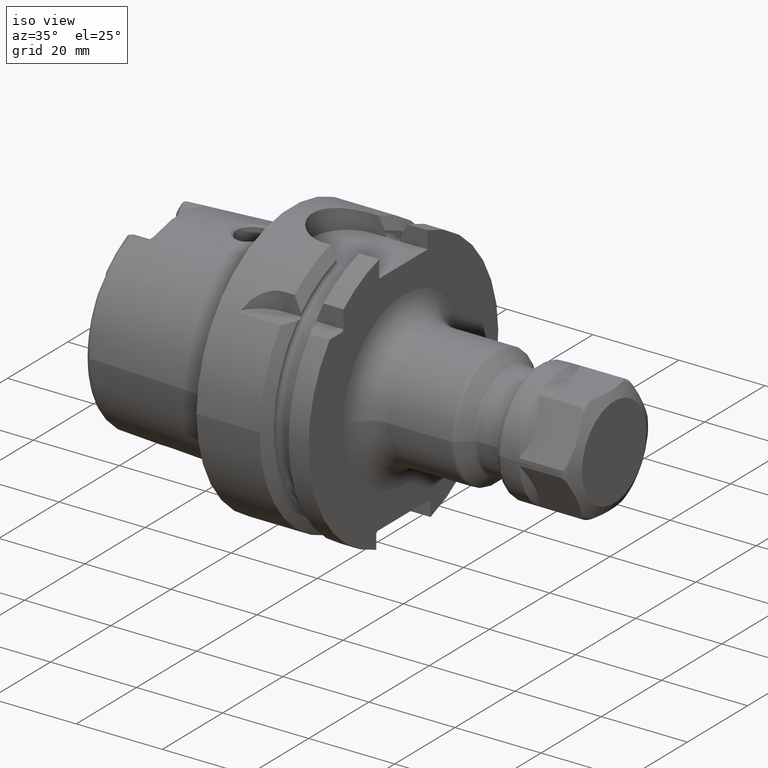
[diagram: clean part render]
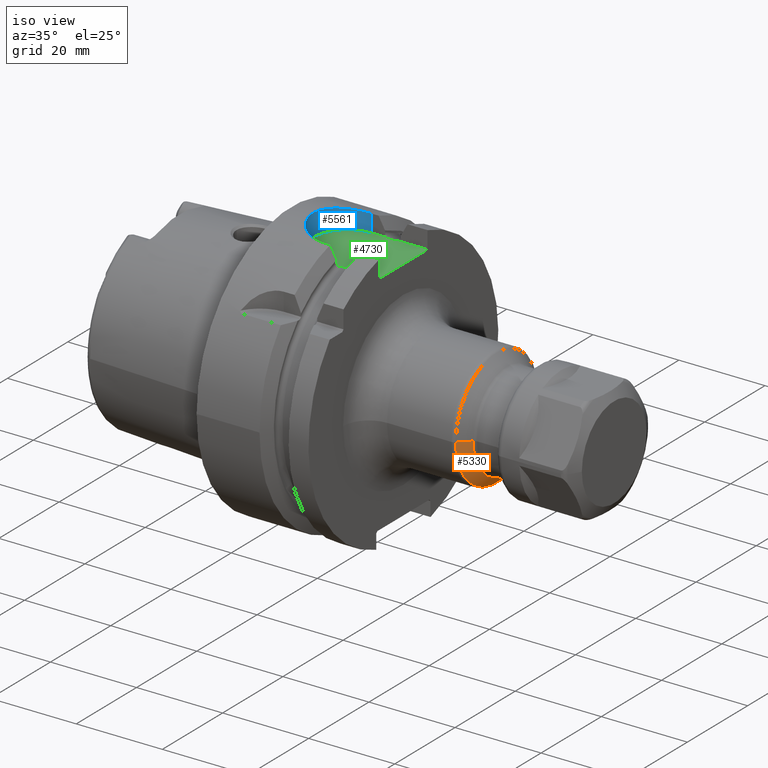
[diagram: same view with three faces highlighted in distinct colors, each labeled with its STEP entity id]
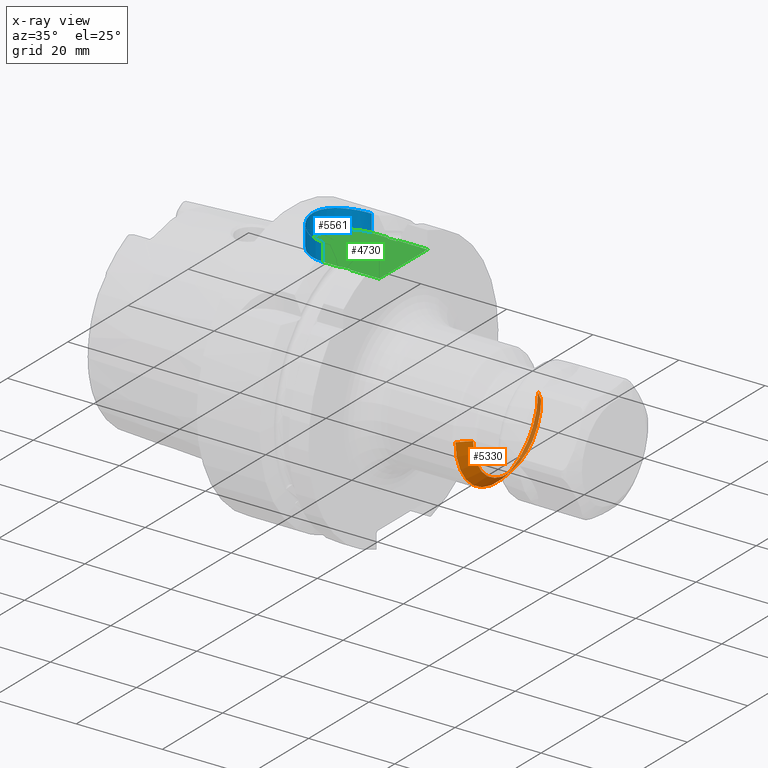
[diagram: x-ray of the same camera — body ghosted, the three highlighted faces saturated]
A machine part, iso view with three faces highlighted in distinct colors.
The next image is the same camera in x-ray (body ghosted, the three faces saturated) — at least one of them is partly hidden behind the body in this view.
Their STEP definitions:

[orange] entity #5330 — the highlighted conical surface has half-angle 45 deg.
#2004=CARTESIAN_POINT('',(4.769289321881E1,0.E0,0.E0));
#2005=DIRECTION('',(-1.E0,0.E0,0.E0));
#2006=DIRECTION('',(0.E0,1.E0,0.E0));
#2007=AXIS2_PLACEMENT_3D('',#2004,#2005,#2006);
#2009=DIRECTION('',(-7.071067811865E-1,-7.071067811865E-1,-1.066852687737E-12));
#2010=VECTOR('',#2009,3.414213562373E0);
#2011=CARTESIAN_POINT('',(5.010710678119E1,-1.129289321881E1,
2.790650948040E-13));
#2012=LINE('',#2011,#2010);
#2013=CARTESIAN_POINT('',(5.010710678119E1,0.E0,0.E0));
#2014=DIRECTION('',(1.E0,0.E0,0.E0));
#2015=DIRECTION('',(0.E0,-1.E0,0.E0));
#2016=AXIS2_PLACEMENT_3D('',#2013,#2014,#2015);
#2018=DIRECTION('',(-7.071067811865E-1,7.071067811866E-1,1.066632331929E-12));
#2019=VECTOR('',#2018,3.414213562373E0);
#2020=CARTESIAN_POINT('',(5.010710678119E1,1.129289321881E1,
-2.794247177302E-13));
#2021=LINE('',#2020,#2019);
#3124=CARTESIAN_POINT('',(5.010710678119E1,-1.129289321881E1,0.E0));
#3125=CARTESIAN_POINT('',(5.010710678119E1,1.129289321881E1,0.E0));
#3126=VERTEX_POINT('',#3124);
#3127=VERTEX_POINT('',#3125);
#3136=CARTESIAN_POINT('',(4.769289321881E1,1.370710678119E1,0.E0));
#3137=CARTESIAN_POINT('',(4.769289321881E1,-1.370710678119E1,0.E0));
#3138=VERTEX_POINT('',#3136);
#3139=VERTEX_POINT('',#3137);
#5316=CARTESIAN_POINT('',(4.89E1,0.E0,0.E0));
#5317=DIRECTION('',(-1.E0,0.E0,0.E0));
#5318=DIRECTION('',(0.E0,1.E0,0.E0));
#5319=AXIS2_PLACEMENT_3D('',#5316,#5317,#5318);
#5320=CONICAL_SURFACE('',#5319,1.25E1,4.5E1);
#5321=ORIENTED_EDGE('',*,*,#5298,.T.);
#5323=ORIENTED_EDGE('',*,*,#5322,.F.);
#5325=ORIENTED_EDGE('',*,*,#5324,.T.);
#5327=ORIENTED_EDGE('',*,*,#5326,.T.);
#5328=EDGE_LOOP('',(#5321,#5323,#5325,#5327));
#5329=FACE_OUTER_BOUND('',#5328,.F.);
#5330=ADVANCED_FACE('',(#5329),#5320,.T.);
#2008=CIRCLE('',#2007,1.370710678119E1);
#2017=CIRCLE('',#2016,1.129289321881E1);
#5298=EDGE_CURVE('',#3138,#3139,#2008,.T.);
#5322=EDGE_CURVE('',#3126,#3139,#2012,.T.);
#5324=EDGE_CURVE('',#3126,#3127,#2017,.T.);
#5326=EDGE_CURVE('',#3127,#3138,#2021,.T.);

[blue] entity #5561 — the highlighted cylindrical surface (partial cylindrical patch) has radius 8.0175 mm, axis along (0, 0, 1).
#1150=CARTESIAN_POINT('',(1.29675E1,-8.0175E0,3.046259499370E1));
#1151=CARTESIAN_POINT('',(1.262029466193E1,-8.0175E0,3.046259499370E1));
#1152=CARTESIAN_POINT('',(1.193292082029E1,-7.972856309682E0,3.047439785027E1));
#1153=CARTESIAN_POINT('',(1.091425902188E1,-7.773176787902E0,3.052624418591E1));
#1154=CARTESIAN_POINT('',(9.934126849983E0,-7.445404290975E0,3.060831570964E1));
#1155=CARTESIAN_POINT('',(9.004286205686E0,-6.994846174415E0,3.071501370342E1));
#1156=CARTESIAN_POINT('',(8.138619971222E0,-6.428343040649E0,3.083929437245E1));
#1157=CARTESIAN_POINT('',(7.341033244269E0,-5.744094981007E0,3.097488281900E1));
#1158=CARTESIAN_POINT('',(6.636610015904E0,-4.956823973346E0,3.111134005505E1));
#1159=CARTESIAN_POINT('',(6.043298615168E0,-4.087231355503E0,3.123817795333E1));
#1160=CARTESIAN_POINT('',(5.564354260648E0,-3.139626798488E0,3.134839057540E1));
#1161=CARTESIAN_POINT('',(5.208675508384E0,-2.115659667041E0,3.143476377212E1));
#1162=CARTESIAN_POINT('',(4.995564432998E0,-1.053473182399E0,3.148835416009E1));
#1163=CARTESIAN_POINT('',(4.927168873806E0,9.826508337445E-4,3.150583538732E1));
#1164=CARTESIAN_POINT('',(4.995760366771E0,1.054869977933E0,3.148830421554E1));
#1165=CARTESIAN_POINT('',(5.209100296272E0,2.117206961075E0,3.143465845843E1));
#1166=CARTESIAN_POINT('',(5.564768023101E0,3.140504656583E0,3.134829355759E1));
#1167=CARTESIAN_POINT('',(6.043465163200E0,4.087475455639E0,3.123814225608E1));
#1168=CARTESIAN_POINT('',(6.636650004810E0,4.956867733051E0,3.111133228169E1));
#1169=CARTESIAN_POINT('',(7.340978157719E0,5.744022439956E0,3.097489453754E1));
#1170=CARTESIAN_POINT('',(8.138191392118E0,6.427992830706E0,3.083936557780E1));
#1171=CARTESIAN_POINT('',(9.003473595842E0,6.994378480458E0,3.071512050332E1));
#1172=CARTESIAN_POINT('',(9.933336680083E0,7.445092599368E0,3.060839241432E1));
#1173=CARTESIAN_POINT('',(1.091365443769E1,7.773025904739E0,3.052628299010E1));
#1174=CARTESIAN_POINT('',(1.193250504209E1,7.972814414214E0,3.047440893684E1));
#1175=CARTESIAN_POINT('',(1.262014082393E1,8.0175E0,3.046259499370E1));
#1176=CARTESIAN_POINT('',(1.29675E1,8.0175E0,3.046259499370E1));
#1512=CARTESIAN_POINT('',(1.29675E1,0.E0,2.64E1));
#1513=DIRECTION('',(0.E0,0.E0,1.E0));
#1514=DIRECTION('',(0.E0,1.E0,0.E0));
#1515=AXIS2_PLACEMENT_3D('',#1512,#1513,#1514);
#1521=DIRECTION('',(0.E0,0.E0,1.E0));
#1522=VECTOR('',#1521,4.062594993697E0);
#1523=CARTESIAN_POINT('',(1.29675E1,-8.0175E0,2.64E1));
#1524=LINE('',#1523,#1522);
#2154=DIRECTION('',(0.E0,0.E0,1.E0));
#2155=VECTOR('',#2154,4.062594993697E0);
#2156=CARTESIAN_POINT('',(1.29675E1,8.0175E0,2.64E1));
#2157=LINE('',#2156,#2155);
#2955=CARTESIAN_POINT('',(1.29675E1,8.0175E0,2.64E1));
#2956=CARTESIAN_POINT('',(1.29675E1,-8.0175E0,2.64E1));
#2957=VERTEX_POINT('',#2955);
#2958=VERTEX_POINT('',#2956);
#2961=CARTESIAN_POINT('',(1.29675E1,8.0175E0,3.046259499370E1));
#2962=VERTEX_POINT('',#2961);
#2963=CARTESIAN_POINT('',(1.29675E1,-8.0175E0,3.046259499370E1));
#2964=VERTEX_POINT('',#2963);
#5550=CARTESIAN_POINT('',(1.29675E1,0.E0,2.64E1));
#5551=DIRECTION('',(0.E0,0.E0,1.E0));
#5552=DIRECTION('',(1.E0,0.E0,0.E0));
#5553=AXIS2_PLACEMENT_3D('',#5550,#5551,#5552);
#5554=CYLINDRICAL_SURFACE('',#5553,8.0175E0);
#5555=ORIENTED_EDGE('',*,*,#4832,.F.);
#5556=ORIENTED_EDGE('',*,*,#4712,.T.);
#5557=ORIENTED_EDGE('',*,*,#4743,.T.);
#5558=ORIENTED_EDGE('',*,*,#4444,.T.);
#5559=EDGE_LOOP('',(#5555,#5556,#5557,#5558));
#5560=FACE_OUTER_BOUND('',#5559,.F.);
#5561=ADVANCED_FACE('',(#5560),#5554,.F.);
#1177=B_SPLINE_CURVE_WITH_KNOTS('',3,(#1150,#1151,#1152,#1153,#1154,#1155,#1156,
#1157,#1158,#1159,#1160,#1161,#1162,#1163,#1164,#1165,#1166,#1167,#1168,#1169,
#1170,#1171,#1172,#1173,#1174,#1175,#1176),.UNSPECIFIED.,.F.,.F.,(4,1,1,1,1,1,1,
1,1,1,1,1,1,1,1,1,1,1,1,1,1,1,1,1,4),(0.E0,4.166666666667E-2,8.333333333333E-2,
1.25E-1,1.666666666667E-1,2.083333333333E-1,2.5E-1,2.916666666667E-1,
3.333333333333E-1,3.75E-1,4.166666666667E-1,4.583333333333E-1,5.E-1,
5.416666666667E-1,5.833333333333E-1,6.25E-1,6.666666666667E-1,7.083333333333E-1,
7.5E-1,7.916666666667E-1,8.333333333333E-1,8.75E-1,9.166666666667E-1,
9.583333333333E-1,1.E0),.UNSPECIFIED.);
#1516=CIRCLE('',#1515,8.0175E0);
#4444=EDGE_CURVE('',#2964,#2962,#1177,.T.);
#4712=EDGE_CURVE('',#2957,#2958,#1516,.T.);
#4743=EDGE_CURVE('',#2958,#2964,#1524,.T.);
#4832=EDGE_CURVE('',#2957,#2962,#2157,.T.);

[green] entity #4730 — the highlighted planar face has unit normal (0, 0, 1).
#1235=CARTESIAN_POINT('',(1.670911310946E1,8.0175E0,2.64E1));
#1236=CARTESIAN_POINT('',(1.673352951994E1,7.979074793464E0,2.64E1));
#1237=CARTESIAN_POINT('',(1.678346969240E1,7.908219856299E0,2.64E1));
#1238=CARTESIAN_POINT('',(1.686140323483E1,7.821166046425E0,2.64E1));
#1239=CARTESIAN_POINT('',(1.694700550698E1,7.751989508750E0,2.64E1));
#1240=CARTESIAN_POINT('',(1.703710106542E1,7.709022207033E0,2.64E1));
#1241=CARTESIAN_POINT('',(1.709569678300E1,7.7E0,2.64E1));
#1242=CARTESIAN_POINT('',(1.7125E1,7.7E0,2.64E1));
#1286=CARTESIAN_POINT('',(1.7125E1,-7.7E0,2.64E1));
#1287=CARTESIAN_POINT('',(1.709801542874E1,-7.7E0,2.64E1));
#1288=CARTESIAN_POINT('',(1.704428225575E1,-7.707480820281E0,2.64E1));
#1289=CARTESIAN_POINT('',(1.696015728326E1,-7.744711750978E0,2.64E1));
#1290=CARTESIAN_POINT('',(1.688520085667E1,-7.800550899081E0,2.64E1));
#1291=CARTESIAN_POINT('',(1.681986238020E1,-7.866117342831E0,2.64E1));
#1292=CARTESIAN_POINT('',(1.676061128616E1,-7.939936204551E0,2.64E1));
#1293=CARTESIAN_POINT('',(1.672578491309E1,-7.991262830607E0,2.64E1));
#1294=CARTESIAN_POINT('',(1.670911310946E1,-8.0175E0,2.64E1));
#1381=CARTESIAN_POINT('',(1.8875E1,7.7E0,2.64E1));
#1382=CARTESIAN_POINT('',(1.890430468861E1,7.7E0,2.64E1));
#1383=CARTESIAN_POINT('',(1.896290280766E1,7.708993215977E0,2.64E1));
#1384=CARTESIAN_POINT('',(1.905331742183E1,7.752198019553E0,2.64E1));
#1385=CARTESIAN_POINT('',(1.913860453300E1,7.821194226188E0,2.64E1));
#1386=CARTESIAN_POINT('',(1.921661446474E1,7.908317855978E0,2.64E1));
#1387=CARTESIAN_POINT('',(1.926649394598E1,7.979111722839E0,2.64E1));
#1388=CARTESIAN_POINT('',(1.929088689054E1,8.0175E0,2.64E1));
#1436=CARTESIAN_POINT('',(1.929088689054E1,-8.0175E0,2.64E1));
#1437=CARTESIAN_POINT('',(1.927417922618E1,-7.991206394948E0,2.64E1));
#1438=CARTESIAN_POINT('',(1.923922993687E1,-7.939709103662E0,2.64E1));
#1439=CARTESIAN_POINT('',(1.917963781936E1,-7.865495822527E0,2.64E1));
#1440=CARTESIAN_POINT('',(1.911354741171E1,-7.799456458601E0,2.64E1));
#1441=CARTESIAN_POINT('',(1.903907332419E1,-7.744292367168E0,2.64E1));
#1442=CARTESIAN_POINT('',(1.895500739860E1,-7.707298016794E0,2.64E1));
#1443=CARTESIAN_POINT('',(1.890171865616E1,-7.7E0,2.64E1));
#1444=CARTESIAN_POINT('',(1.8875E1,-7.7E0,2.64E1));
#1491=DIRECTION('',(1.E0,0.E0,0.E0));
#1492=VECTOR('',#1491,1.75E0);
#1493=CARTESIAN_POINT('',(1.7125E1,-7.7E0,2.64E1));
#1494=LINE('',#1493,#1492);
#1499=DIRECTION('',(1.E0,0.E0,0.E0));
#1500=VECTOR('',#1499,1.75E0);
#1501=CARTESIAN_POINT('',(1.7125E1,7.7E0,2.64E1));
#1502=LINE('',#1501,#1500);
#1508=DIRECTION('',(1.E0,0.E0,0.E0));
#1509=VECTOR('',#1508,3.741613109456E0);
#1510=CARTESIAN_POINT('',(1.29675E1,-8.0175E0,2.64E1));
#1511=LINE('',#1510,#1509);
#1512=CARTESIAN_POINT('',(1.29675E1,0.E0,2.64E1));
#1513=DIRECTION('',(0.E0,0.E0,1.E0));
#1514=DIRECTION('',(0.E0,1.E0,0.E0));
#1515=AXIS2_PLACEMENT_3D('',#1512,#1513,#1514);
#1517=DIRECTION('',(-1.E0,0.E0,0.E0));
#1518=VECTOR('',#1517,3.741613109456E0);
#1519=CARTESIAN_POINT('',(1.670911310946E1,8.0175E0,2.64E1));
#1520=LINE('',#1519,#1518);
#1525=DIRECTION('',(1.E0,0.E0,0.E0));
#1526=VECTOR('',#1525,6.709113109456E0);
#1527=CARTESIAN_POINT('',(1.929088689054E1,-8.0175E0,2.64E1));
#1528=LINE('',#1527,#1526);
#1561=DIRECTION('',(-1.E0,0.E0,0.E0));
#1562=VECTOR('',#1561,6.709113109456E0);
#1563=CARTESIAN_POINT('',(2.6E1,8.0175E0,2.64E1));
#1564=LINE('',#1563,#1562);
#1688=DIRECTION('',(0.E0,1.E0,0.E0));
#1689=VECTOR('',#1688,1.6035E1);
#1690=CARTESIAN_POINT('',(2.6E1,-8.0175E0,2.64E1));
#1691=LINE('',#1690,#1689);
#2955=CARTESIAN_POINT('',(1.29675E1,8.0175E0,2.64E1));
#2956=CARTESIAN_POINT('',(1.29675E1,-8.0175E0,2.64E1));
#2957=VERTEX_POINT('',#2955);
#2958=VERTEX_POINT('',#2956);
#2959=CARTESIAN_POINT('',(1.670911310946E1,-8.0175E0,2.64E1));
#2960=VERTEX_POINT('',#2959);
#2965=CARTESIAN_POINT('',(1.670911310946E1,8.0175E0,2.64E1));
#2966=VERTEX_POINT('',#2965);
#3013=CARTESIAN_POINT('',(1.929088689054E1,-8.0175E0,2.64E1));
#3014=CARTESIAN_POINT('',(2.6E1,-8.0175E0,2.64E1));
#3015=VERTEX_POINT('',#3013);
#3016=VERTEX_POINT('',#3014);
#3017=CARTESIAN_POINT('',(2.6E1,8.0175E0,2.64E1));
#3018=CARTESIAN_POINT('',(1.929088689054E1,8.0175E0,2.64E1));
#3019=VERTEX_POINT('',#3017);
#3020=VERTEX_POINT('',#3018);
#3033=VERTEX_POINT('',#1242);
#3034=VERTEX_POINT('',#1286);
#3035=CARTESIAN_POINT('',(1.8875E1,7.7E0,2.64E1));
#3036=VERTEX_POINT('',#3035);
#3037=CARTESIAN_POINT('',(1.8875E1,-7.7E0,2.64E1));
#3038=VERTEX_POINT('',#3037);
#4705=CARTESIAN_POINT('',(0.E0,0.E0,2.64E1));
#4706=DIRECTION('',(0.E0,0.E0,1.E0));
#4707=DIRECTION('',(1.E0,0.E0,0.E0));
#4708=AXIS2_PLACEMENT_3D('',#4705,#4706,#4707);
#4709=PLANE('',#4708);
#4711=ORIENTED_EDGE('',*,*,#4710,.F.);
#4713=ORIENTED_EDGE('',*,*,#4712,.F.);
#4715=ORIENTED_EDGE('',*,*,#4714,.F.);
#4716=ORIENTED_EDGE('',*,*,#4510,.T.);
#4717=ORIENTED_EDGE('',*,*,#4699,.T.);
#4718=ORIENTED_EDGE('',*,*,#4615,.T.);
#4720=ORIENTED_EDGE('',*,*,#4719,.F.);
#4722=ORIENTED_EDGE('',*,*,#4721,.F.);
#4724=ORIENTED_EDGE('',*,*,#4723,.F.);
#4725=ORIENTED_EDGE('',*,*,#4643,.T.);
#4726=ORIENTED_EDGE('',*,*,#4686,.F.);
#4727=ORIENTED_EDGE('',*,*,#4533,.T.);
#4728=EDGE_LOOP('',(#4711,#4713,#4715,#4716,#4717,#4718,#4720,#4722,#4724,#4725,
#4726,#4727));
#4729=FACE_OUTER_BOUND('',#4728,.F.);
#4730=ADVANCED_FACE('',(#4729),#4709,.T.);
#1243=B_SPLINE_CURVE_WITH_KNOTS('',3,(#1235,#1236,#1237,#1238,#1239,#1240,#1241,
#1242),.UNSPECIFIED.,.F.,.F.,(4,1,1,1,1,4),(0.E0,2.E-1,4.E-1,6.E-1,8.E-1,1.E0),
.UNSPECIFIED.);
#1295=B_SPLINE_CURVE_WITH_KNOTS('',3,(#1286,#1287,#1288,#1289,#1290,#1291,#1292,
#1293,#1294),.UNSPECIFIED.,.F.,.F.,(4,1,1,1,1,1,4),(0.E0,1.666666666667E-1,
3.333333333333E-1,5.E-1,6.666666666667E-1,8.333333333333E-1,1.E0),
.UNSPECIFIED.);
#1389=B_SPLINE_CURVE_WITH_KNOTS('',3,(#1381,#1382,#1383,#1384,#1385,#1386,#1387,
#1388),.UNSPECIFIED.,.F.,.F.,(4,1,1,1,1,4),(0.E0,2.E-1,4.E-1,6.E-1,8.E-1,1.E0),
.UNSPECIFIED.);
#1445=B_SPLINE_CURVE_WITH_KNOTS('',3,(#1436,#1437,#1438,#1439,#1440,#1441,#1442,
#1443,#1444),.UNSPECIFIED.,.F.,.F.,(4,1,1,1,1,1,4),(0.E0,1.666666666667E-1,
3.333333333333E-1,5.E-1,6.666666666667E-1,8.333333333333E-1,1.E0),
.UNSPECIFIED.);
#1516=CIRCLE('',#1515,8.0175E0);
#4510=EDGE_CURVE('',#2966,#3033,#1243,.T.);
#4533=EDGE_CURVE('',#3034,#2960,#1295,.T.);
#4615=EDGE_CURVE('',#3036,#3020,#1389,.T.);
#4643=EDGE_CURVE('',#3015,#3038,#1445,.T.);
#4686=EDGE_CURVE('',#3034,#3038,#1494,.T.);
#4699=EDGE_CURVE('',#3033,#3036,#1502,.T.);
#4710=EDGE_CURVE('',#2958,#2960,#1511,.T.);
#4712=EDGE_CURVE('',#2957,#2958,#1516,.T.);
#4714=EDGE_CURVE('',#2966,#2957,#1520,.T.);
#4719=EDGE_CURVE('',#3019,#3020,#1564,.T.);
#4721=EDGE_CURVE('',#3016,#3019,#1691,.T.);
#4723=EDGE_CURVE('',#3015,#3016,#1528,.T.);